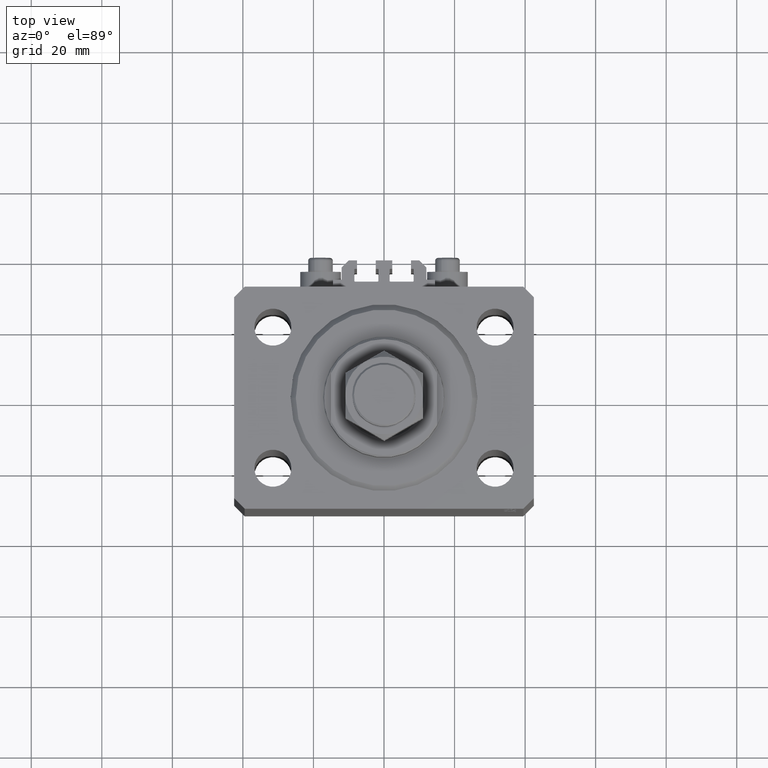
[diagram: clean part render]
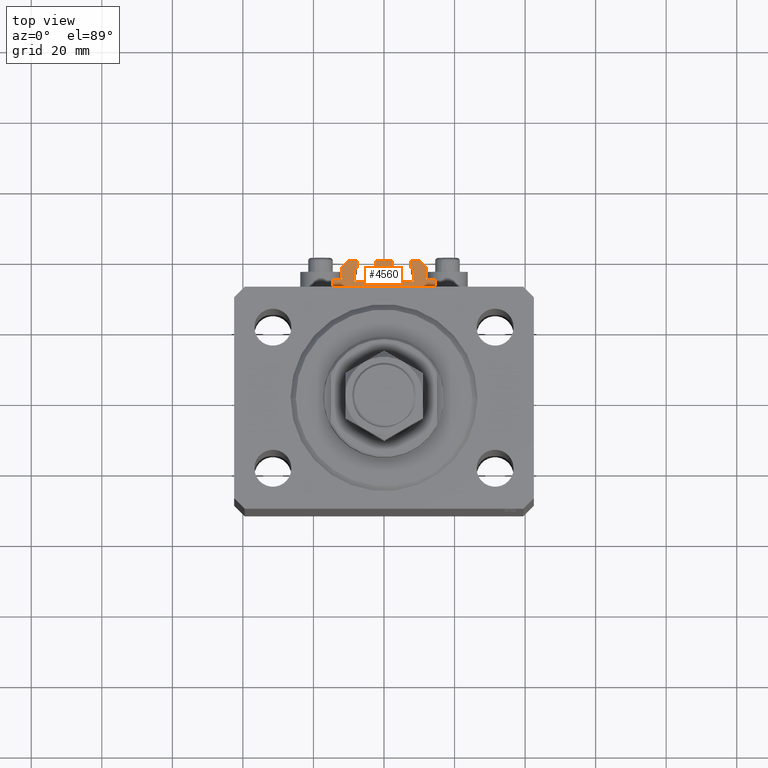
[diagram: same view with one face highlighted and labeled with its STEP entity id]
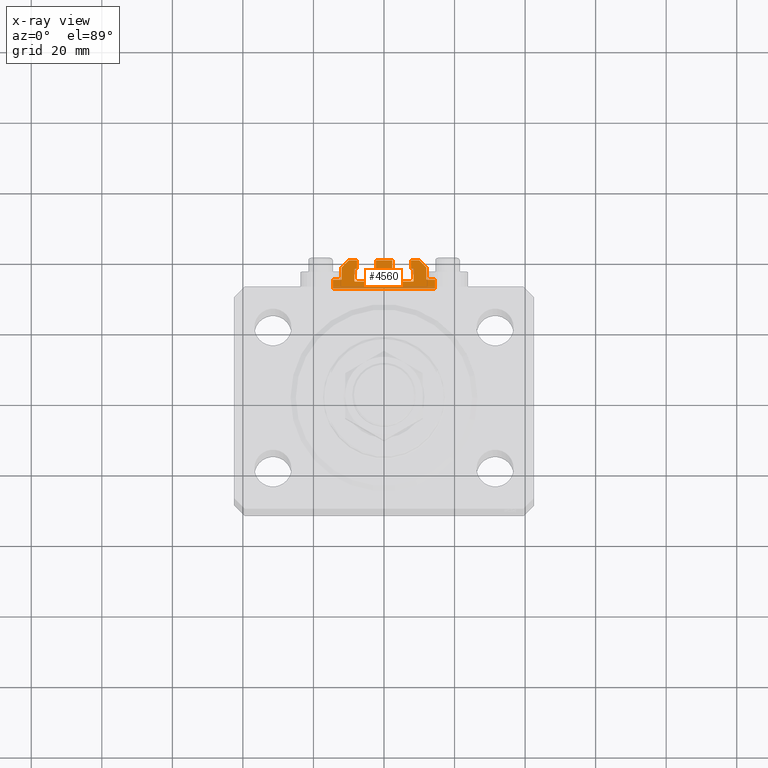
[diagram: x-ray of the same camera — body ghosted, the highlighted face saturated]
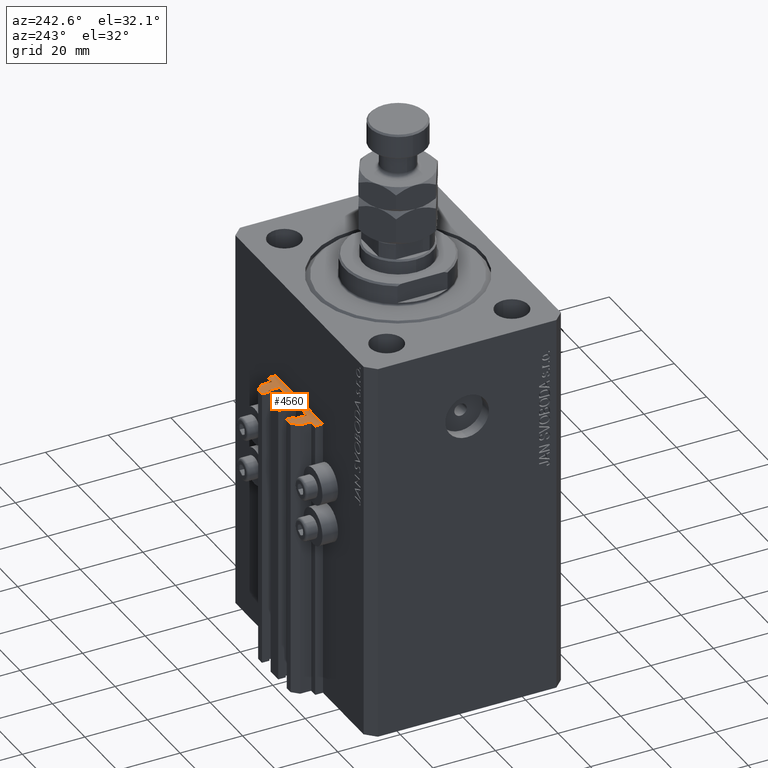
[diagram: same view with one face highlighted and labeled with its STEP entity id]
A machine part, top view. The second image highlights one B-rep face of the part: STEP entity #4560.
The next image is the same camera in x-ray: the body ghosted, the highlighted face saturated — about 13% of this face is hidden behind the body in this view.
A second angle (auxiliary view) of the same face is appended — the face is thin or edge-on in the first view.
In plain terms, the highlighted planar face has unit normal (0, 0, 1).
Its self-contained STEP definition (entity closure, byte-faithful):
#374 = CARTESIAN_POINT ( 'NONE',  ( 2.349999999999999645, 37.10000000000000853, -33.00000000000000000 ) ) ;
#540 = ORIENTED_EDGE ( 'NONE', *, *, #6264, .T. ) ;
#635 = EDGE_CURVE ( 'NONE', #29708, #26714, #36969, .T. ) ;
#759 = ORIENTED_EDGE ( 'NONE', *, *, #16992, .F. ) ;
#1111 = AXIS2_PLACEMENT_3D ( 'NONE', #17368, #39689, #46633 ) ;
#1645 = CARTESIAN_POINT ( 'NONE',  ( 12.00000000000000000, 37.50000000000002132, -33.00000000000000000 ) ) ;
#1668 = VERTEX_POINT ( 'NONE', #34958 ) ;
#1691 = AXIS2_PLACEMENT_3D ( 'NONE', #28989, #48794, #36667 ) ;
#1702 = CARTESIAN_POINT ( 'NONE',  ( -12.00000000000000000, 37.49999999999999289, -33.00000000000000000 ) ) ;
#1741 = EDGE_CURVE ( 'NONE', #14688, #9620, #15866, .T. ) ;
#1917 = EDGE_CURVE ( 'NONE', #29630, #16742, #4653, .T. ) ;
#2022 = DIRECTION ( 'NONE',  ( -1.000000000000000000, 0.000000000000000000, 0.000000000000000000 ) ) ;
#2383 = DIRECTION ( 'NONE',  ( 0.000000000000000000, 0.000000000000000000, 1.000000000000000000 ) ) ;
#2495 = CARTESIAN_POINT ( 'NONE',  ( -12.00000000000000000, 37.49999999999999289, -33.00000000000000000 ) ) ;
#2662 = CARTESIAN_POINT ( 'NONE',  ( 14.49999999999999645, 34.00000000000001421, -33.00000000000000000 ) ) ;
#2736 = EDGE_CURVE ( 'NONE', #8888, #7016, #10050, .T. ) ;
#2777 = ORIENTED_EDGE ( 'NONE', *, *, #29676, .T. ) ;
#2944 = VERTEX_POINT ( 'NONE', #25122 ) ;
#3034 = CARTESIAN_POINT ( 'NONE',  ( -14.50000000000000000, 31.50000000000000000, -33.00000000000000000 ) ) ;
#3155 = LINE ( 'NONE', #25959, #9198 ) ;
#3182 = PLANE ( 'NONE',  #1691 ) ;
#3489 = VECTOR ( 'NONE', #23567, 1000.000000000000000 ) ;
#3617 = EDGE_LOOP ( 'NONE', ( #18290, #16429, #31716, #2777, #24107, #5195, #11646, #15326, #32464, #36748, #20323, #33041, #759, #4083, #39380, #33740, #11799, #7819, #11902, #32721, #15682, #32212, #44663, #46803, #23320, #33451, #33975, #36171, #7418, #22477, #38453, #540, #15385, #17962, #33390, #14978 ) ) ;
#3636 = CIRCLE ( 'NONE', #19476, 0.1999999999999987899 ) ;
#3699 = EDGE_CURVE ( 'NONE', #14374, #43843, #32831, .T. ) ;
#3927 = DIRECTION ( 'NONE',  ( 1.000000000000000000, 0.000000000000000000, 0.000000000000000000 ) ) ;
#4054 = VECTOR ( 'NONE', #48197, 1000.000000000000000 ) ;
#4083 = ORIENTED_EDGE ( 'NONE', *, *, #30951, .T. ) ;
#4560 = ADVANCED_FACE ( 'NONE', ( #25744 ), #3182, .T. ) ;
#4653 = LINE ( 'NONE', #30705, #13453 ) ;
#4887 = CARTESIAN_POINT ( 'NONE',  ( -7.650000000000002132, 39.49999999999999289, -33.00000000000000000 ) ) ;
#5073 = LINE ( 'NONE', #24145, #25017 ) ;
#5195 = ORIENTED_EDGE ( 'NONE', *, *, #21170, .T. ) ;
#5563 = CARTESIAN_POINT ( 'NONE',  ( 12.00000000000000178, 34.20000000000002416, -33.00000000000000000 ) ) ;
#5963 = CARTESIAN_POINT ( 'NONE',  ( -7.650000000000002132, 39.49999999999999289, -33.00000000000000000 ) ) ;
#6115 = VECTOR ( 'NONE', #43494, 1000.000000000000000 ) ;
#6264 = EDGE_CURVE ( 'NONE', #20871, #2944, #43635, .T. ) ;
#6617 = EDGE_CURVE ( 'NONE', #41470, #31653, #24246, .T. ) ;
#6742 = EDGE_CURVE ( 'NONE', #29708, #18421, #32699, .T. ) ;
#6885 = DIRECTION ( 'NONE',  ( 0.000000000000000000, 0.000000000000000000, 1.000000000000000000 ) ) ;
#6897 = DIRECTION ( 'NONE',  ( 0.000000000000000000, 0.000000000000000000, 1.000000000000000000 ) ) ;
#7016 = VERTEX_POINT ( 'NONE', #374 ) ;
#7418 = ORIENTED_EDGE ( 'NONE', *, *, #46162, .F. ) ;
#7559 = CIRCLE ( 'NONE', #24188, 0.2000000000000040079 ) ;
#7628 = AXIS2_PLACEMENT_3D ( 'NONE', #40869, #6897, #22008 ) ;
#7665 = EDGE_CURVE ( 'NONE', #24136, #14592, #30151, .T. ) ;
#7819 = ORIENTED_EDGE ( 'NONE', *, *, #2736, .T. ) ;
#8411 = CARTESIAN_POINT ( 'NONE',  ( -1.800000000000000933, 33.50000000000000000, -33.00000000000000000 ) ) ;
#8554 = VERTEX_POINT ( 'NONE', #35826 ) ;
#8559 = LINE ( 'NONE', #5563, #24692 ) ;
#8654 = CARTESIAN_POINT ( 'NONE',  ( -8.400000000000000355, 36.89999999999999858, -33.00000000000000000 ) ) ;
#8828 = EDGE_CURVE ( 'NONE', #29630, #24696, #23958, .T. ) ;
#8888 = VERTEX_POINT ( 'NONE', #41682 ) ;
#9041 = VECTOR ( 'NONE', #48898, 1000.000000000000000 ) ;
#9198 = VECTOR ( 'NONE', #37126, 1000.000000000000000 ) ;
#9438 = CARTESIAN_POINT ( 'NONE',  ( 1.600000000000000533, 36.90000000000000568, -33.00000000000000000 ) ) ;
#9527 = CARTESIAN_POINT ( 'NONE',  ( -8.399999999999996803, 33.70000000000000284, -33.00000000000000000 ) ) ;
#9560 = VERTEX_POINT ( 'NONE', #26375 ) ;
#9620 = VERTEX_POINT ( 'NONE', #26862 ) ;
#9669 = DIRECTION ( 'NONE',  ( -1.000000000000000000, 0.000000000000000000, 0.000000000000000000 ) ) ;
#10050 = LINE ( 'NONE', #13035, #36469 ) ;
#10280 = DIRECTION ( 'NONE',  ( 1.000000000000000000, 0.000000000000000000, 0.000000000000000000 ) ) ;
#10522 = AXIS2_PLACEMENT_3D ( 'NONE', #39861, #30164, #18974 ) ;
#10654 = DIRECTION ( 'NONE',  ( 1.000000000000000000, 0.000000000000000000, 0.000000000000000000 ) ) ;
#10931 = CARTESIAN_POINT ( 'NONE',  ( 1.600000000000000533, 33.70000000000000284, -33.00000000000000000 ) ) ;
#11295 = DIRECTION ( 'NONE',  ( 1.807003620809174632E-16, -1.000000000000000000, 0.000000000000000000 ) ) ;
#11646 = ORIENTED_EDGE ( 'NONE', *, *, #12100, .T. ) ;
#11799 = ORIENTED_EDGE ( 'NONE', *, *, #23028, .F. ) ;
#11860 = VERTEX_POINT ( 'NONE', #1702 ) ;
#11902 = ORIENTED_EDGE ( 'NONE', *, *, #15549, .T. ) ;
#12100 = EDGE_CURVE ( 'NONE', #9560, #47395, #27438, .T. ) ;
#12343 = CARTESIAN_POINT ( 'NONE',  ( -12.20000000000000107, 33.99999999999998579, -33.00000000000000000 ) ) ;
#12522 = EDGE_CURVE ( 'NONE', #41470, #26714, #48561, .T. ) ;
#12748 = DIRECTION ( 'NONE',  ( -1.084202172485506406E-15, 1.000000000000000000, 0.000000000000000000 ) ) ;
#12896 = CIRCLE ( 'NONE', #10522, 0.1999999999999998723 ) ;
#12971 = VERTEX_POINT ( 'NONE', #32509 ) ;
#12972 = CIRCLE ( 'NONE', #1111, 0.1999999999999987899 ) ;
#12995 = VERTEX_POINT ( 'NONE', #9438 ) ;
#13035 = CARTESIAN_POINT ( 'NONE',  ( 1.800000000000000933, 37.10000000000000853, -33.00000000000000000 ) ) ;
#13194 = CARTESIAN_POINT ( 'NONE',  ( -12.20000000000000107, 34.19999999999999574, -33.00000000000000000 ) ) ;
#13316 = CARTESIAN_POINT ( 'NONE',  ( -1.600000000000001421, 36.90000000000000568, -33.00000000000000000 ) ) ;
#13453 = VECTOR ( 'NONE', #38377, 1000.000000000000000 ) ;
#13583 = DIRECTION ( 'NONE',  ( 0.000000000000000000, 0.000000000000000000, 1.000000000000000000 ) ) ;
#13700 = EDGE_CURVE ( 'NONE', #43843, #1668, #34495, .T. ) ;
#13808 = LINE ( 'NONE', #2662, #38071 ) ;
#13834 = CARTESIAN_POINT ( 'NONE',  ( 8.199999999999999289, 33.70000000000000284, -33.00000000000000000 ) ) ;
#13982 = EDGE_CURVE ( 'NONE', #2944, #11860, #24242, .T. ) ;
#14070 = VERTEX_POINT ( 'NONE', #21973 ) ;
#14374 = VERTEX_POINT ( 'NONE', #29620 ) ;
#14385 = DIRECTION ( 'NONE',  ( -6.776263578034385456E-17, -1.000000000000000000, 0.000000000000000000 ) ) ;
#14592 = VERTEX_POINT ( 'NONE', #17410 ) ;
#14619 = CARTESIAN_POINT ( 'NONE',  ( -12.00000000000000000, 34.19999999999999574, -33.00000000000000000 ) ) ;
#14622 = CARTESIAN_POINT ( 'NONE',  ( -2.350000000000003197, 37.10000000000000853, -33.00000000000000000 ) ) ;
#14628 = DIRECTION ( 'NONE',  ( 0.000000000000000000, -1.000000000000000000, 0.000000000000000000 ) ) ;
#14688 = VERTEX_POINT ( 'NONE', #3034 ) ;
#14837 = CARTESIAN_POINT ( 'NONE',  ( 14.49999999999999645, 34.00000000000001421, -33.00000000000000000 ) ) ;
#14978 = ORIENTED_EDGE ( 'NONE', *, *, #1917, .T. ) ;
#15326 = ORIENTED_EDGE ( 'NONE', *, *, #16715, .T. ) ;
#15385 = ORIENTED_EDGE ( 'NONE', *, *, #13982, .T. ) ;
#15549 = EDGE_CURVE ( 'NONE', #7016, #39490, #47911, .T. ) ;
#15682 = ORIENTED_EDGE ( 'NONE', *, *, #7665, .T. ) ;
#15823 = EDGE_CURVE ( 'NONE', #11860, #24696, #44139, .T. ) ;
#15866 = LINE ( 'NONE', #35449, #29320 ) ;
#16016 = CARTESIAN_POINT ( 'NONE',  ( -1.800000000000000933, 36.90000000000000568, -33.00000000000000000 ) ) ;
#16429 = ORIENTED_EDGE ( 'NONE', *, *, #1741, .T. ) ;
#16715 = EDGE_CURVE ( 'NONE', #47395, #14374, #20569, .T. ) ;
#16742 = VERTEX_POINT ( 'NONE', #45357 ) ;
#16967 = VERTEX_POINT ( 'NONE', #8654 ) ;
#16992 = EDGE_CURVE ( 'NONE', #47072, #8554, #41596, .T. ) ;
#17291 = DIRECTION ( 'NONE',  ( -0.7071067811865472397, -0.7071067811865479058, 0.000000000000000000 ) ) ;
#17368 = CARTESIAN_POINT ( 'NONE',  ( -8.199999999999997513, 33.70000000000000284, -33.00000000000000000 ) ) ;
#17410 = CARTESIAN_POINT ( 'NONE',  ( -2.350000000000003197, 37.10000000000000853, -33.00000000000000000 ) ) ;
#17484 = DIRECTION ( 'NONE',  ( 1.000000000000000000, 0.000000000000000000, 0.000000000000000000 ) ) ;
#17598 = CARTESIAN_POINT ( 'NONE',  ( -8.199999999999997513, 33.50000000000000000, -33.00000000000000000 ) ) ;
#17772 = LINE ( 'NONE', #36871, #36627 ) ;
#17962 = ORIENTED_EDGE ( 'NONE', *, *, #15823, .T. ) ;
#18149 = DIRECTION ( 'NONE',  ( 1.000000000000000000, 0.000000000000000000, 0.000000000000000000 ) ) ;
#18188 = VECTOR ( 'NONE', #14385, 1000.000000000000000 ) ;
#18290 = ORIENTED_EDGE ( 'NONE', *, *, #40634, .T. ) ;
#18421 = VERTEX_POINT ( 'NONE', #33230 ) ;
#18437 = EDGE_CURVE ( 'NONE', #14592, #18421, #44620, .T. ) ;
#18949 = EDGE_CURVE ( 'NONE', #9620, #36793, #37415, .T. ) ;
#18974 = DIRECTION ( 'NONE',  ( 1.000000000000000000, 0.000000000000000000, 0.000000000000000000 ) ) ;
#19476 = AXIS2_PLACEMENT_3D ( 'NONE', #24201, #2383, #17484 ) ;
#19940 = DIRECTION ( 'NONE',  ( -5.256737805990328981E-16, 1.000000000000000000, 0.000000000000000000 ) ) ;
#19993 = VECTOR ( 'NONE', #11295, 1000.000000000000000 ) ;
#20221 = VECTOR ( 'NONE', #26630, 1000.000000000000000 ) ;
#20323 = ORIENTED_EDGE ( 'NONE', *, *, #45704, .F. ) ;
#20569 = LINE ( 'NONE', #28291, #26484 ) ;
#20624 = CARTESIAN_POINT ( 'NONE',  ( -8.199999999999999289, 37.09999999999999432, -33.00000000000000000 ) ) ;
#20804 = AXIS2_PLACEMENT_3D ( 'NONE', #13194, #44176, #36016 ) ;
#20871 = VERTEX_POINT ( 'NONE', #4887 ) ;
#20918 = LINE ( 'NONE', #9527, #30263 ) ;
#21170 = EDGE_CURVE ( 'NONE', #25577, #9560, #8559, .T. ) ;
#21219 = EDGE_CURVE ( 'NONE', #31330, #16967, #20918, .T. ) ;
#21624 = DIRECTION ( 'NONE',  ( 0.000000000000000000, 0.000000000000000000, 1.000000000000000000 ) ) ;
#21973 = CARTESIAN_POINT ( 'NONE',  ( 1.600000000000001421, 33.70000000000000284, -33.00000000000000000 ) ) ;
#22008 = DIRECTION ( 'NONE',  ( 1.000000000000000000, 0.000000000000000000, 0.000000000000000000 ) ) ;
#22406 = CARTESIAN_POINT ( 'NONE',  ( -14.50000000000000000, 33.99999999999998579, -33.00000000000000000 ) ) ;
#22477 = ORIENTED_EDGE ( 'NONE', *, *, #46389, .T. ) ;
#22696 = VECTOR ( 'NONE', #10654, 1000.000000000000000 ) ;
#22755 = EDGE_CURVE ( 'NONE', #25577, #30690, #27908, .T. ) ;
#22767 = CARTESIAN_POINT ( 'NONE',  ( 12.20000000000000107, 34.20000000000002416, -33.00000000000000000 ) ) ;
#23028 = EDGE_CURVE ( 'NONE', #8888, #12995, #12896, .T. ) ;
#23033 = VECTOR ( 'NONE', #39766, 1000.000000000000000 ) ;
#23320 = ORIENTED_EDGE ( 'NONE', *, *, #12522, .F. ) ;
#23567 = DIRECTION ( 'NONE',  ( 1.000000000000000000, 0.000000000000000000, 0.000000000000000000 ) ) ;
#23958 = CIRCLE ( 'NONE', #20804, 0.2000000000000040079 ) ;
#24107 = ORIENTED_EDGE ( 'NONE', *, *, #22755, .F. ) ;
#24136 = VERTEX_POINT ( 'NONE', #47774 ) ;
#24145 = CARTESIAN_POINT ( 'NONE',  ( -8.199999999999999289, 37.09999999999999432, -33.00000000000000000 ) ) ;
#24188 = AXIS2_PLACEMENT_3D ( 'NONE', #33187, #6885, #45058 ) ;
#24201 = CARTESIAN_POINT ( 'NONE',  ( -8.199999999999999289, 36.89999999999999858, -33.00000000000000000 ) ) ;
#24242 = LINE ( 'NONE', #25224, #41459 ) ;
#24246 = LINE ( 'NONE', #32204, #46853 ) ;
#24692 = VECTOR ( 'NONE', #19940, 1000.000000000000000 ) ;
#24696 = VERTEX_POINT ( 'NONE', #14619 ) ;
#25017 = VECTOR ( 'NONE', #39762, 1000.000000000000000 ) ;
#25080 = CIRCLE ( 'NONE', #7628, 0.1999999999999998723 ) ;
#25122 = CARTESIAN_POINT ( 'NONE',  ( -10.00000000000000000, 39.49999999999999289, -33.00000000000000000 ) ) ;
#25224 = CARTESIAN_POINT ( 'NONE',  ( -10.00000000000000000, 39.49999999999999289, -33.00000000000000000 ) ) ;
#25535 = CARTESIAN_POINT ( 'NONE',  ( 8.400000000000000355, 36.90000000000001279, -33.00000000000000000 ) ) ;
#25577 = VERTEX_POINT ( 'NONE', #27606 ) ;
#25650 = CARTESIAN_POINT ( 'NONE',  ( 8.199999999999999289, 33.50000000000000000, -33.00000000000000000 ) ) ;
#25744 = FACE_OUTER_BOUND ( 'NONE', #3617, .T. ) ;
#25959 = CARTESIAN_POINT ( 'NONE',  ( -7.650000000000002132, 37.09999999999999432, -33.00000000000000000 ) ) ;
#26375 = CARTESIAN_POINT ( 'NONE',  ( 12.00000000000000000, 37.50000000000002132, -33.00000000000000000 ) ) ;
#26484 = VECTOR ( 'NONE', #2022, 1000.000000000000000 ) ;
#26630 = DIRECTION ( 'NONE',  ( 0.000000000000000000, -1.000000000000000000, 0.000000000000000000 ) ) ;
#26714 = VERTEX_POINT ( 'NONE', #34157 ) ;
#26862 = CARTESIAN_POINT ( 'NONE',  ( 14.49999999999999645, 31.50000000000000000, -33.00000000000000000 ) ) ;
#27127 = AXIS2_PLACEMENT_3D ( 'NONE', #16016, #38340, #38085 ) ;
#27438 = LINE ( 'NONE', #1645, #38234 ) ;
#27606 = CARTESIAN_POINT ( 'NONE',  ( 11.99999999999999822, 34.20000000000002416, -33.00000000000000000 ) ) ;
#27908 = CIRCLE ( 'NONE', #34258, 0.2000000000000022593 ) ;
#28291 = CARTESIAN_POINT ( 'NONE',  ( 9.999999999999998224, 39.50000000000002132, -33.00000000000000000 ) ) ;
#28989 = CARTESIAN_POINT ( 'NONE',  ( 12.20000000000000107, 34.20000000000002416, -33.00000000000000000 ) ) ;
#29086 = CARTESIAN_POINT ( 'NONE',  ( 2.349999999999999645, 37.10000000000000853, -33.00000000000000000 ) ) ;
#29320 = VECTOR ( 'NONE', #38690, 1000.000000000000000 ) ;
#29419 = DIRECTION ( 'NONE',  ( 1.000000000000000000, 0.000000000000000000, 0.000000000000000000 ) ) ;
#29620 = CARTESIAN_POINT ( 'NONE',  ( 7.649999999999998579, 39.50000000000002132, -33.00000000000000000 ) ) ;
#29630 = VERTEX_POINT ( 'NONE', #12343 ) ;
#29676 = EDGE_CURVE ( 'NONE', #36793, #30690, #13808, .T. ) ;
#29708 = VERTEX_POINT ( 'NONE', #13316 ) ;
#29977 = CARTESIAN_POINT ( 'NONE',  ( 14.49999999999999645, 31.50000000000000000, -33.00000000000000000 ) ) ;
#30151 = LINE ( 'NONE', #41304, #19993 ) ;
#30164 = DIRECTION ( 'NONE',  ( 0.000000000000000000, 0.000000000000000000, 1.000000000000000000 ) ) ;
#30263 = VECTOR ( 'NONE', #12748, 1000.000000000000000 ) ;
#30677 = LINE ( 'NONE', #25535, #45215 ) ;
#30690 = VERTEX_POINT ( 'NONE', #42785 ) ;
#30705 = CARTESIAN_POINT ( 'NONE',  ( -12.20000000000000107, 33.99999999999998579, -33.00000000000000000 ) ) ;
#30951 = EDGE_CURVE ( 'NONE', #47072, #48248, #46986, .T. ) ;
#31330 = VERTEX_POINT ( 'NONE', #33793 ) ;
#31628 = EDGE_CURVE ( 'NONE', #33681, #8554, #30677, .T. ) ;
#31653 = VERTEX_POINT ( 'NONE', #17598 ) ;
#31716 = ORIENTED_EDGE ( 'NONE', *, *, #18949, .T. ) ;
#32143 = DIRECTION ( 'NONE',  ( -0.7071067811865474617, 0.7071067811865474617, 0.000000000000000000 ) ) ;
#32204 = CARTESIAN_POINT ( 'NONE',  ( -1.800000000000000933, 33.50000000000000000, -33.00000000000000000 ) ) ;
#32212 = ORIENTED_EDGE ( 'NONE', *, *, #18437, .T. ) ;
#32464 = ORIENTED_EDGE ( 'NONE', *, *, #3699, .T. ) ;
#32509 = CARTESIAN_POINT ( 'NONE',  ( -7.650000000000002132, 37.09999999999999432, -33.00000000000000000 ) ) ;
#32699 = CIRCLE ( 'NONE', #27127, 0.1999999999999996503 ) ;
#32721 = ORIENTED_EDGE ( 'NONE', *, *, #34487, .F. ) ;
#32831 = LINE ( 'NONE', #40012, #23033 ) ;
#32868 = AXIS2_PLACEMENT_3D ( 'NONE', #13834, #13583, #43851 ) ;
#33041 = ORIENTED_EDGE ( 'NONE', *, *, #31628, .T. ) ;
#33071 = CARTESIAN_POINT ( 'NONE',  ( 9.999999999999998224, 39.50000000000002132, -33.00000000000000000 ) ) ;
#33187 = CARTESIAN_POINT ( 'NONE',  ( 8.200000000000001066, 36.90000000000001279, -33.00000000000000000 ) ) ;
#33230 = CARTESIAN_POINT ( 'NONE',  ( -1.800000000000000933, 37.10000000000000853, -33.00000000000000000 ) ) ;
#33390 = ORIENTED_EDGE ( 'NONE', *, *, #8828, .F. ) ;
#33441 = VECTOR ( 'NONE', #9669, 1000.000000000000000 ) ;
#33451 = ORIENTED_EDGE ( 'NONE', *, *, #6617, .T. ) ;
#33681 = VERTEX_POINT ( 'NONE', #41306 ) ;
#33740 = ORIENTED_EDGE ( 'NONE', *, *, #48505, .T. ) ;
#33793 = CARTESIAN_POINT ( 'NONE',  ( -8.399999999999996803, 33.70000000000000284, -33.00000000000000000 ) ) ;
#33975 = ORIENTED_EDGE ( 'NONE', *, *, #38003, .F. ) ;
#34157 = CARTESIAN_POINT ( 'NONE',  ( -1.600000000000000755, 33.70000000000000284, -33.00000000000000000 ) ) ;
#34258 = AXIS2_PLACEMENT_3D ( 'NONE', #22767, #37902, #3927 ) ;
#34487 = EDGE_CURVE ( 'NONE', #24136, #39490, #17772, .T. ) ;
#34495 = LINE ( 'NONE', #35229, #3489 ) ;
#34947 = CARTESIAN_POINT ( 'NONE',  ( 8.199999999999999289, 33.50000000000000000, -33.00000000000000000 ) ) ;
#34958 = CARTESIAN_POINT ( 'NONE',  ( 8.200000000000001066, 37.10000000000002274, -33.00000000000000000 ) ) ;
#35229 = CARTESIAN_POINT ( 'NONE',  ( 7.649999999999998579, 37.10000000000002274, -33.00000000000000000 ) ) ;
#35449 = CARTESIAN_POINT ( 'NONE',  ( -14.50000000000000000, 31.50000000000000000, -33.00000000000000000 ) ) ;
#35826 = CARTESIAN_POINT ( 'NONE',  ( 8.400000000000000355, 33.70000000000000995, -33.00000000000000000 ) ) ;
#35900 = DIRECTION ( 'NONE',  ( -1.000000000000000000, 0.000000000000000000, 0.000000000000000000 ) ) ;
#36016 = DIRECTION ( 'NONE',  ( 1.000000000000000000, 0.000000000000000000, 0.000000000000000000 ) ) ;
#36038 = CARTESIAN_POINT ( 'NONE',  ( -1.800000000000000933, 33.70000000000000284, -33.00000000000000000 ) ) ;
#36171 = ORIENTED_EDGE ( 'NONE', *, *, #21219, .T. ) ;
#36469 = VECTOR ( 'NONE', #10280, 1000.000000000000000 ) ;
#36627 = VECTOR ( 'NONE', #29419, 1000.000000000000000 ) ;
#36667 = DIRECTION ( 'NONE',  ( 1.000000000000000000, 0.000000000000000000, -0.000000000000000000 ) ) ;
#36706 = DIRECTION ( 'NONE',  ( -5.421010862427508365E-16, -1.000000000000000000, 0.000000000000000000 ) ) ;
#36748 = ORIENTED_EDGE ( 'NONE', *, *, #13700, .T. ) ;
#36793 = VERTEX_POINT ( 'NONE', #14837 ) ;
#36871 = CARTESIAN_POINT ( 'NONE',  ( -2.350000000000003642, 39.50000000000000711, -33.00000000000000000 ) ) ;
#36969 = LINE ( 'NONE', #48348, #18188 ) ;
#37126 = DIRECTION ( 'NONE',  ( 0.000000000000000000, 1.000000000000000000, 0.000000000000000000 ) ) ;
#37415 = LINE ( 'NONE', #29977, #40137 ) ;
#37902 = DIRECTION ( 'NONE',  ( 0.000000000000000000, 0.000000000000000000, 1.000000000000000000 ) ) ;
#38003 = EDGE_CURVE ( 'NONE', #31330, #31653, #12972, .T. ) ;
#38071 = VECTOR ( 'NONE', #35900, 1000.000000000000000 ) ;
#38085 = DIRECTION ( 'NONE',  ( 1.000000000000000000, 0.000000000000000000, 0.000000000000000000 ) ) ;
#38234 = VECTOR ( 'NONE', #32143, 1000.000000000000114 ) ;
#38340 = DIRECTION ( 'NONE',  ( 0.000000000000000000, 0.000000000000000000, 1.000000000000000000 ) ) ;
#38377 = DIRECTION ( 'NONE',  ( -1.000000000000000000, 0.000000000000000000, 0.000000000000000000 ) ) ;
#38453 = ORIENTED_EDGE ( 'NONE', *, *, #43096, .T. ) ;
#38690 = DIRECTION ( 'NONE',  ( 1.000000000000000000, 0.000000000000000000, 0.000000000000000000 ) ) ;
#39380 = ORIENTED_EDGE ( 'NONE', *, *, #47993, .F. ) ;
#39490 = VERTEX_POINT ( 'NONE', #45183 ) ;
#39689 = DIRECTION ( 'NONE',  ( 0.000000000000000000, 0.000000000000000000, 1.000000000000000000 ) ) ;
#39762 = DIRECTION ( 'NONE',  ( 1.000000000000000000, 0.000000000000000000, 0.000000000000000000 ) ) ;
#39766 = DIRECTION ( 'NONE',  ( 0.000000000000000000, -1.000000000000000000, 0.000000000000000000 ) ) ;
#39861 = CARTESIAN_POINT ( 'NONE',  ( 1.800000000000000933, 36.90000000000000568, -33.00000000000000000 ) ) ;
#40012 = CARTESIAN_POINT ( 'NONE',  ( 7.649999999999998579, 39.50000000000002132, -33.00000000000000000 ) ) ;
#40137 = VECTOR ( 'NONE', #45083, 1000.000000000000000 ) ;
#40634 = EDGE_CURVE ( 'NONE', #16742, #14688, #45471, .T. ) ;
#40748 = VECTOR ( 'NONE', #14628, 1000.000000000000000 ) ;
#40869 = CARTESIAN_POINT ( 'NONE',  ( 1.800000000000000933, 33.70000000000000284, -33.00000000000000000 ) ) ;
#41304 = CARTESIAN_POINT ( 'NONE',  ( -2.350000000000003642, 39.50000000000000711, -33.00000000000000000 ) ) ;
#41306 = CARTESIAN_POINT ( 'NONE',  ( 8.400000000000003908, 36.90000000000001279, -33.00000000000000000 ) ) ;
#41459 = VECTOR ( 'NONE', #17291, 999.9999999999998863 ) ;
#41470 = VERTEX_POINT ( 'NONE', #8411 ) ;
#41596 = CIRCLE ( 'NONE', #32868, 0.1999999999999987899 ) ;
#41682 = CARTESIAN_POINT ( 'NONE',  ( 1.800000000000000933, 37.10000000000000853, -33.00000000000000000 ) ) ;
#42785 = CARTESIAN_POINT ( 'NONE',  ( 12.20000000000000107, 34.00000000000001421, -33.00000000000000000 ) ) ;
#43096 = EDGE_CURVE ( 'NONE', #12971, #20871, #3155, .T. ) ;
#43494 = DIRECTION ( 'NONE',  ( 0.000000000000000000, 1.000000000000000000, 0.000000000000000000 ) ) ;
#43635 = LINE ( 'NONE', #5963, #33441 ) ;
#43843 = VERTEX_POINT ( 'NONE', #44855 ) ;
#43851 = DIRECTION ( 'NONE',  ( 1.000000000000000000, 0.000000000000000000, 0.000000000000000000 ) ) ;
#44132 = VERTEX_POINT ( 'NONE', #20624 ) ;
#44139 = LINE ( 'NONE', #2495, #40748 ) ;
#44176 = DIRECTION ( 'NONE',  ( 0.000000000000000000, 0.000000000000000000, 1.000000000000000000 ) ) ;
#44599 = AXIS2_PLACEMENT_3D ( 'NONE', #36038, #21624, #18149 ) ;
#44620 = LINE ( 'NONE', #14622, #22696 ) ;
#44663 = ORIENTED_EDGE ( 'NONE', *, *, #6742, .F. ) ;
#44855 = CARTESIAN_POINT ( 'NONE',  ( 7.649999999999998579, 37.10000000000002274, -33.00000000000000000 ) ) ;
#45058 = DIRECTION ( 'NONE',  ( 1.000000000000000000, 0.000000000000000000, 0.000000000000000000 ) ) ;
#45083 = DIRECTION ( 'NONE',  ( 0.000000000000000000, 1.000000000000000000, 0.000000000000000000 ) ) ;
#45183 = CARTESIAN_POINT ( 'NONE',  ( 2.349999999999999645, 39.50000000000000711, -33.00000000000000000 ) ) ;
#45215 = VECTOR ( 'NONE', #36706, 1000.000000000000000 ) ;
#45357 = CARTESIAN_POINT ( 'NONE',  ( -14.50000000000000000, 33.99999999999998579, -33.00000000000000000 ) ) ;
#45471 = LINE ( 'NONE', #22406, #20221 ) ;
#45704 = EDGE_CURVE ( 'NONE', #33681, #1668, #7559, .T. ) ;
#46162 = EDGE_CURVE ( 'NONE', #44132, #16967, #3636, .T. ) ;
#46389 = EDGE_CURVE ( 'NONE', #44132, #12971, #5073, .T. ) ;
#46633 = DIRECTION ( 'NONE',  ( 1.000000000000000000, 0.000000000000000000, 0.000000000000000000 ) ) ;
#46803 = ORIENTED_EDGE ( 'NONE', *, *, #635, .T. ) ;
#46853 = VECTOR ( 'NONE', #47293, 1000.000000000000000 ) ;
#46986 = LINE ( 'NONE', #25650, #4054 ) ;
#47072 = VERTEX_POINT ( 'NONE', #34947 ) ;
#47293 = DIRECTION ( 'NONE',  ( -1.000000000000000000, 0.000000000000000000, 0.000000000000000000 ) ) ;
#47395 = VERTEX_POINT ( 'NONE', #33071 ) ;
#47501 = CARTESIAN_POINT ( 'NONE',  ( 1.800000000000000933, 33.50000000000000000, -33.00000000000000000 ) ) ;
#47774 = CARTESIAN_POINT ( 'NONE',  ( -2.350000000000003642, 39.50000000000000711, -33.00000000000000000 ) ) ;
#47911 = LINE ( 'NONE', #29086, #9041 ) ;
#47993 = EDGE_CURVE ( 'NONE', #14070, #48248, #25080, .T. ) ;
#48197 = DIRECTION ( 'NONE',  ( -1.000000000000000000, 0.000000000000000000, 0.000000000000000000 ) ) ;
#48248 = VERTEX_POINT ( 'NONE', #47501 ) ;
#48348 = CARTESIAN_POINT ( 'NONE',  ( -1.600000000000000533, 36.90000000000000568, -33.00000000000000000 ) ) ;
#48505 = EDGE_CURVE ( 'NONE', #14070, #12995, #48870, .T. ) ;
#48561 = CIRCLE ( 'NONE', #44599, 0.1999999999999994282 ) ;
#48794 = DIRECTION ( 'NONE',  ( 0.000000000000000000, 0.000000000000000000, 1.000000000000000000 ) ) ;
#48870 = LINE ( 'NONE', #10931, #6115 ) ;
#48898 = DIRECTION ( 'NONE',  ( 0.000000000000000000, 1.000000000000000000, 0.000000000000000000 ) ) ;